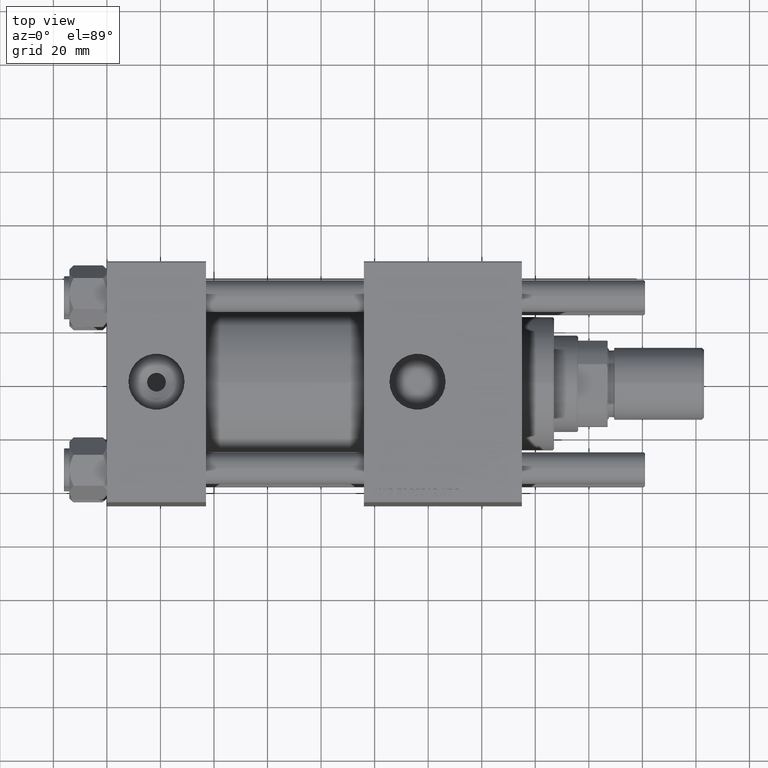
[diagram: clean part render]
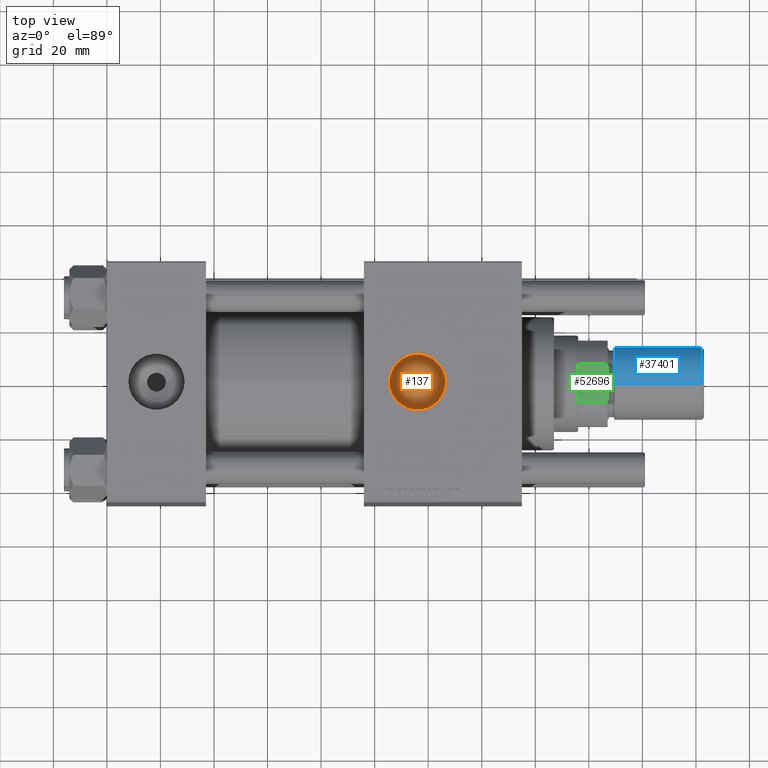
[diagram: same view with three faces highlighted in distinct colors, each labeled with its STEP entity id]
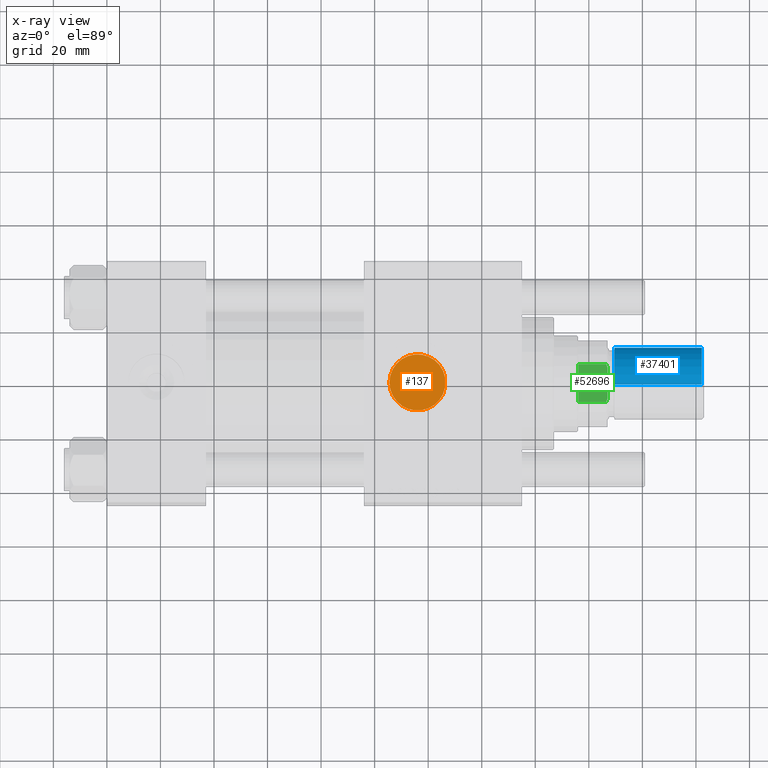
[diagram: x-ray of the same camera — body ghosted, the three highlighted faces saturated]
A machine part, top view with three faces highlighted in distinct colors.
The next image is the same camera in x-ray (body ghosted, the three faces saturated) — at least one of them is partly hidden behind the body in this view.
Their STEP definitions:

[orange] entity #137 — the highlighted planar face has unit normal (0, 0, 1).
#137 = ADVANCED_FACE ( 'NONE', ( #45441 ), #47112, .T. ) ;
#2249 = DIRECTION ( 'NONE',  ( 1.000000000000000000, 0.000000000000000000, 0.000000000000000000 ) ) ;
#2947 = VERTEX_POINT ( 'NONE', #24420 ) ;
#3577 = DIRECTION ( 'NONE',  ( 0.000000000000000000, 0.000000000000000000, 1.000000000000000000 ) ) ;
#4036 = ORIENTED_EDGE ( 'NONE', *, *, #14768, .F. ) ;
#7467 = DIRECTION ( 'NONE',  ( 1.000000000000000000, 0.000000000000000000, 0.000000000000000000 ) ) ;
#8816 = CARTESIAN_POINT ( 'NONE',  ( 105.5199999999999960, -6.938893903907227589E-15, 28.59999999999998721 ) ) ;
#10354 = VERTEX_POINT ( 'NONE', #44427 ) ;
#11035 = CIRCLE ( 'NONE', #55765, 10.48000000000000398 ) ;
#12105 = DIRECTION ( 'NONE',  ( 0.000000000000000000, 0.000000000000000000, 1.000000000000000000 ) ) ;
#13501 = AXIS2_PLACEMENT_3D ( 'NONE', #52451, #3577, #7467 ) ;
#14768 = EDGE_CURVE ( 'NONE', #10354, #2947, #37225, .T. ) ;
#24420 = CARTESIAN_POINT ( 'NONE',  ( 126.2999999999999972, -1.934011375354403928, 28.59999999999998721 ) ) ;
#27400 = CARTESIAN_POINT ( 'NONE',  ( 126.2999999999999972, 0.000000000000000000, 28.59999999999998721 ) ) ;
#30781 = VERTEX_POINT ( 'NONE', #8816 ) ;
#32979 = VECTOR ( 'NONE', #55398, 1000.000000000000000 ) ;
#33111 = ORIENTED_EDGE ( 'NONE', *, *, #35610, .T. ) ;
#35610 = EDGE_CURVE ( 'NONE', #30781, #2947, #50574, .T. ) ;
#37225 = LINE ( 'NONE', #27400, #32979 ) ;
#41276 = AXIS2_PLACEMENT_3D ( 'NONE', #46818, #54384, #54103 ) ;
#44064 = EDGE_LOOP ( 'NONE', ( #45979, #33111, #4036 ) ) ;
#44427 = CARTESIAN_POINT ( 'NONE',  ( 126.2999999999999972, 1.934011375354389939, 28.59999999999998721 ) ) ;
#45441 = FACE_OUTER_BOUND ( 'NONE', #44064, .T. ) ;
#45979 = ORIENTED_EDGE ( 'NONE', *, *, #46891, .T. ) ;
#46818 = CARTESIAN_POINT ( 'NONE',  ( 116.0000000000000000, -6.938893903907227589E-15, 28.59999999999998721 ) ) ;
#46891 = EDGE_CURVE ( 'NONE', #10354, #30781, #11035, .T. ) ;
#47112 = PLANE ( 'NONE',  #41276 ) ;
#50574 = CIRCLE ( 'NONE', #13501, 10.48000000000000398 ) ;
#52451 = CARTESIAN_POINT ( 'NONE',  ( 116.0000000000000000, -6.938893903907227589E-15, 28.59999999999998721 ) ) ;
#54103 = DIRECTION ( 'NONE',  ( 1.000000000000000000, 0.000000000000000000, -0.000000000000000000 ) ) ;
#54384 = DIRECTION ( 'NONE',  ( 0.000000000000000000, 0.000000000000000000, 1.000000000000000000 ) ) ;
#55398 = DIRECTION ( 'NONE',  ( 0.000000000000000000, -1.000000000000000000, 0.000000000000000000 ) ) ;
#55765 = AXIS2_PLACEMENT_3D ( 'NONE', #57367, #12105, #2249 ) ;
#57367 = CARTESIAN_POINT ( 'NONE',  ( 116.0000000000000000, -6.938893903907227589E-15, 28.59999999999998721 ) ) ;

[blue] entity #37401 — the highlighted cylindrical surface (edge-blend (fillet) strip) has radius 13.5 mm, axis along (1, -0, -0).
#292 = CARTESIAN_POINT ( 'NONE',  ( -13.50000000000000000, 0.000000000000000000, 0.7999999999999951594 ) ) ;
#970 = VECTOR ( 'NONE', #49683, 1000.000000000000000 ) ;
#1546 = VERTEX_POINT ( 'NONE', #11836 ) ;
#2457 = AXIS2_PLACEMENT_3D ( 'NONE', #33161, #47150, #14982 ) ;
#2906 = ORIENTED_EDGE ( 'NONE', *, *, #22077, .F. ) ;
#5303 = ORIENTED_EDGE ( 'NONE', *, *, #52981, .T. ) ;
#6664 = CARTESIAN_POINT ( 'NONE',  ( 0.000000000000000000, 0.000000000000000000, 33.50000000000000000 ) ) ;
#9250 = CARTESIAN_POINT ( 'NONE',  ( 0.000000000000000000, 0.000000000000000000, 33.50000000000000000 ) ) ;
#9745 = LINE ( 'NONE', #54729, #970 ) ;
#10108 = LINE ( 'NONE', #45854, #13302 ) ;
#11716 = DIRECTION ( 'NONE',  ( 0.000000000000000000, 0.000000000000000000, 1.000000000000000000 ) ) ;
#11836 = CARTESIAN_POINT ( 'NONE',  ( 13.50000000000000000, 1.653273178848926867E-15, 33.50000000000000000 ) ) ;
#12571 = AXIS2_PLACEMENT_3D ( 'NONE', #6664, #11716, #38817 ) ;
#13302 = VECTOR ( 'NONE', #55382, 1000.000000000000000 ) ;
#14693 = VERTEX_POINT ( 'NONE', #18749 ) ;
#14982 = DIRECTION ( 'NONE',  ( 1.000000000000000000, 0.000000000000000000, 0.000000000000000000 ) ) ;
#18749 = CARTESIAN_POINT ( 'NONE',  ( 13.50000000000000000, 1.653273178848926867E-15, 0.7999999999999951594 ) ) ;
#22077 = EDGE_CURVE ( 'NONE', #55749, #27880, #10108, .T. ) ;
#25158 = ORIENTED_EDGE ( 'NONE', *, *, #29751, .T. ) ;
#27880 = VERTEX_POINT ( 'NONE', #292 ) ;
#28374 = EDGE_LOOP ( 'NONE', ( #57273, #25158, #5303, #2906 ) ) ;
#29164 = DIRECTION ( 'NONE',  ( -1.000000000000000000, 0.000000000000000000, 0.000000000000000000 ) ) ;
#29751 = EDGE_CURVE ( 'NONE', #1546, #14693, #9745, .T. ) ;
#33161 = CARTESIAN_POINT ( 'NONE',  ( 0.000000000000000000, 0.000000000000000000, 0.7999999999999951594 ) ) ;
#33934 = DIRECTION ( 'NONE',  ( -0.000000000000000000, -0.000000000000000000, -1.000000000000000000 ) ) ;
#36152 = EDGE_CURVE ( 'NONE', #1546, #55749, #53441, .T. ) ;
#37401 = ADVANCED_FACE ( 'NONE', ( #50050 ), #54238, .T. ) ;
#38817 = DIRECTION ( 'NONE',  ( 1.000000000000000000, 0.000000000000000000, 0.000000000000000000 ) ) ;
#45854 = CARTESIAN_POINT ( 'NONE',  ( -13.50000000000000000, 0.000000000000000000, 33.50000000000000000 ) ) ;
#47150 = DIRECTION ( 'NONE',  ( -0.000000000000000000, -0.000000000000000000, 1.000000000000000000 ) ) ;
#47364 = CARTESIAN_POINT ( 'NONE',  ( -13.50000000000000000, 0.000000000000000000, 33.50000000000000000 ) ) ;
#48759 = AXIS2_PLACEMENT_3D ( 'NONE', #9250, #33934, #29164 ) ;
#49683 = DIRECTION ( 'NONE',  ( -0.000000000000000000, -0.000000000000000000, -1.000000000000000000 ) ) ;
#50050 = FACE_OUTER_BOUND ( 'NONE', #28374, .T. ) ;
#52981 = EDGE_CURVE ( 'NONE', #14693, #27880, #53910, .T. ) ;
#53441 = CIRCLE ( 'NONE', #12571, 13.50000000000000000 ) ;
#53910 = CIRCLE ( 'NONE', #2457, 13.50000000000000000 ) ;
#54238 = CYLINDRICAL_SURFACE ( 'NONE', #48759, 13.50000000000000000 ) ;
#54729 = CARTESIAN_POINT ( 'NONE',  ( 13.50000000000000000, 1.653273178848926867E-15, 33.50000000000000000 ) ) ;
#55382 = DIRECTION ( 'NONE',  ( -0.000000000000000000, -0.000000000000000000, -1.000000000000000000 ) ) ;
#55749 = VERTEX_POINT ( 'NONE', #47364 ) ;
#57273 = ORIENTED_EDGE ( 'NONE', *, *, #36152, .F. ) ;

[green] entity #52696 — the highlighted planar face has unit normal (0, 0, -1).
#6 = EDGE_CURVE ( 'NONE', #12766, #4564, #17794, .T. ) ;
#466 = ORIENTED_EDGE ( 'NONE', *, *, #29331, .T. ) ;
#4564 = VERTEX_POINT ( 'NONE', #39767 ) ;
#6958 = DIRECTION ( 'NONE',  ( 1.000000000000000000, 0.000000000000000000, 0.000000000000000000 ) ) ;
#8528 = CARTESIAN_POINT ( 'NONE',  ( 6.197659614355942814, -15.99999999999999645, 149.8468915343184165 ) ) ;
#8642 = DIRECTION ( 'NONE',  ( -0.000000000000000000, -0.000000000000000000, 1.000000000000000000 ) ) ;
#12766 = VERTEX_POINT ( 'NONE', #19354 ) ;
#14793 = VERTEX_POINT ( 'NONE', #33339 ) ;
#15317 = ORIENTED_EDGE ( 'NONE', *, *, #6, .T. ) ;
#17794 = B_SPLINE_CURVE_WITH_KNOTS ( 'NONE', 3,
 ( #52922, #35341, #8528, #39215 ),
 .UNSPECIFIED., .F., .F.,
 ( 4, 4 ),
 ( 0.000000000000000000, 0.001434143729551245290 ),
 .UNSPECIFIED. ) ;
#18318 = CARTESIAN_POINT ( 'NONE',  ( -7.088723439378915359, -16.00000000000000000, -0.001000000000001000089 ) ) ;
#19354 = CARTESIAN_POINT ( 'NONE',  ( 7.088723439378915359, -16.00000000000000000, 149.4999999999999716 ) ) ;
#19598 = VECTOR ( 'NONE', #8642, 1000.000000000000000 ) ;
#20050 = LINE ( 'NONE', #42109, #26126 ) ;
#20408 = FACE_OUTER_BOUND ( 'NONE', #47537, .T. ) ;
#20440 = B_SPLINE_CURVE_WITH_KNOTS ( 'NONE', 3,
 ( #44405, #49751, #21155, #58102 ),
 .UNSPECIFIED., .F., .F.,
 ( 4, 4 ),
 ( 0.000000000000000000, 0.001434143729551243772 ),
 .UNSPECIFIED. ) ;
#21155 = CARTESIAN_POINT ( 'NONE',  ( -6.645462757301076273, -15.99999999999999645, 149.6795515649600361 ) ) ;
#23136 = CARTESIAN_POINT ( 'NONE',  ( 7.088723439378915359, -16.00000000000000000, 139.0000000000000000 ) ) ;
#26126 = VECTOR ( 'NONE', #6958, 1000.000000000000000 ) ;
#29331 = EDGE_CURVE ( 'NONE', #39908, #55151, #20440, .T. ) ;
#29707 = VERTEX_POINT ( 'NONE', #23136 ) ;
#30820 = EDGE_CURVE ( 'NONE', #14793, #55151, #45152, .T. ) ;
#32350 = LINE ( 'NONE', #45758, #56323 ) ;
#32548 = EDGE_CURVE ( 'NONE', #39908, #4564, #32350, .T. ) ;
#33339 = CARTESIAN_POINT ( 'NONE',  ( -7.088723439378915359, -16.00000000000000000, 139.0000000000000000 ) ) ;
#34413 = DIRECTION ( 'NONE',  ( 0.000000000000000000, 1.000000000000000000, 0.000000000000000000 ) ) ;
#35341 = CARTESIAN_POINT ( 'NONE',  ( 6.645462757301063839, -16.00000000000000000, 149.6795515649599793 ) ) ;
#36496 = DIRECTION ( 'NONE',  ( -0.000000000000000000, -0.000000000000000000, 1.000000000000000000 ) ) ;
#36931 = ORIENTED_EDGE ( 'NONE', *, *, #32548, .F. ) ;
#38166 = ORIENTED_EDGE ( 'NONE', *, *, #52542, .T. ) ;
#38590 = CARTESIAN_POINT ( 'NONE',  ( -16.00000000000000000, -15.99999999999999645, 150.0000000000000284 ) ) ;
#39215 = CARTESIAN_POINT ( 'NONE',  ( 5.744562646537858086, -15.99999999999999645, 150.0000000000000284 ) ) ;
#39283 = ORIENTED_EDGE ( 'NONE', *, *, #30820, .F. ) ;
#39767 = CARTESIAN_POINT ( 'NONE',  ( 5.744562646537858086, -15.99999999999999645, 150.0000000000000284 ) ) ;
#39908 = VERTEX_POINT ( 'NONE', #58098 ) ;
#42109 = CARTESIAN_POINT ( 'NONE',  ( -16.00000000000000000, -15.99999999999999645, 139.0000000000000000 ) ) ;
#43827 = EDGE_CURVE ( 'NONE', #14793, #29707, #20050, .T. ) ;
#44405 = CARTESIAN_POINT ( 'NONE',  ( -5.744562646537858086, -15.99999999999999645, 150.0000000000000284 ) ) ;
#45152 = LINE ( 'NONE', #18318, #47743 ) ;
#45758 = CARTESIAN_POINT ( 'NONE',  ( -16.00000000000000000, -15.99999999999999645, 150.0000000000000284 ) ) ;
#47204 = AXIS2_PLACEMENT_3D ( 'NONE', #38590, #34413, #56764 ) ;
#47537 = EDGE_LOOP ( 'NONE', ( #38166, #15317, #36931, #466, #39283, #52410 ) ) ;
#47743 = VECTOR ( 'NONE', #36496, 1000.000000000000000 ) ;
#48348 = CARTESIAN_POINT ( 'NONE',  ( -7.088723439378915359, -16.00000000000000000, 149.4999999999999716 ) ) ;
#49443 = CARTESIAN_POINT ( 'NONE',  ( 7.088723439378915359, -16.00000000000000000, -0.001000000000001000089 ) ) ;
#49751 = CARTESIAN_POINT ( 'NONE',  ( -6.197659614355943702, -15.99999999999999645, 149.8468915343184165 ) ) ;
#52410 = ORIENTED_EDGE ( 'NONE', *, *, #43827, .T. ) ;
#52542 = EDGE_CURVE ( 'NONE', #29707, #12766, #55077, .T. ) ;
#52696 = ADVANCED_FACE ( 'NONE', ( #20408 ), #57061, .F. ) ;
#52922 = CARTESIAN_POINT ( 'NONE',  ( 7.088723439378915359, -16.00000000000000000, 149.4999999999999716 ) ) ;
#54700 = DIRECTION ( 'NONE',  ( 1.000000000000000000, 0.000000000000000000, 0.000000000000000000 ) ) ;
#55077 = LINE ( 'NONE', #49443, #19598 ) ;
#55151 = VERTEX_POINT ( 'NONE', #48348 ) ;
#56323 = VECTOR ( 'NONE', #54700, 1000.000000000000000 ) ;
#56764 = DIRECTION ( 'NONE',  ( 0.000000000000000000, -0.000000000000000000, 1.000000000000000000 ) ) ;
#57061 = PLANE ( 'NONE',  #47204 ) ;
#58098 = CARTESIAN_POINT ( 'NONE',  ( -5.744562646537858086, -15.99999999999999645, 150.0000000000000284 ) ) ;
#58102 = CARTESIAN_POINT ( 'NONE',  ( -7.088723439378915359, -16.00000000000000000, 149.4999999999999716 ) ) ;